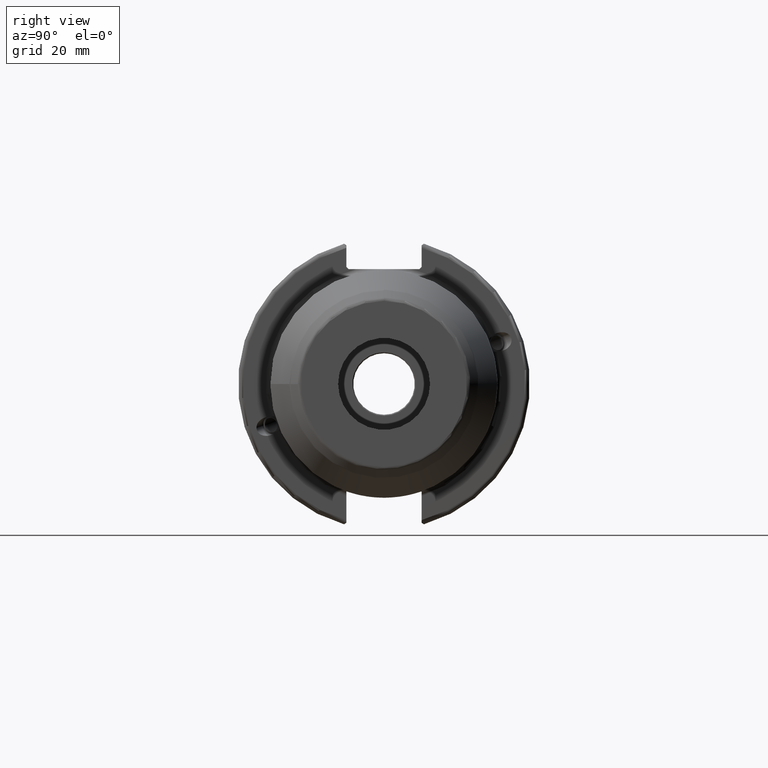
[diagram: clean part render]
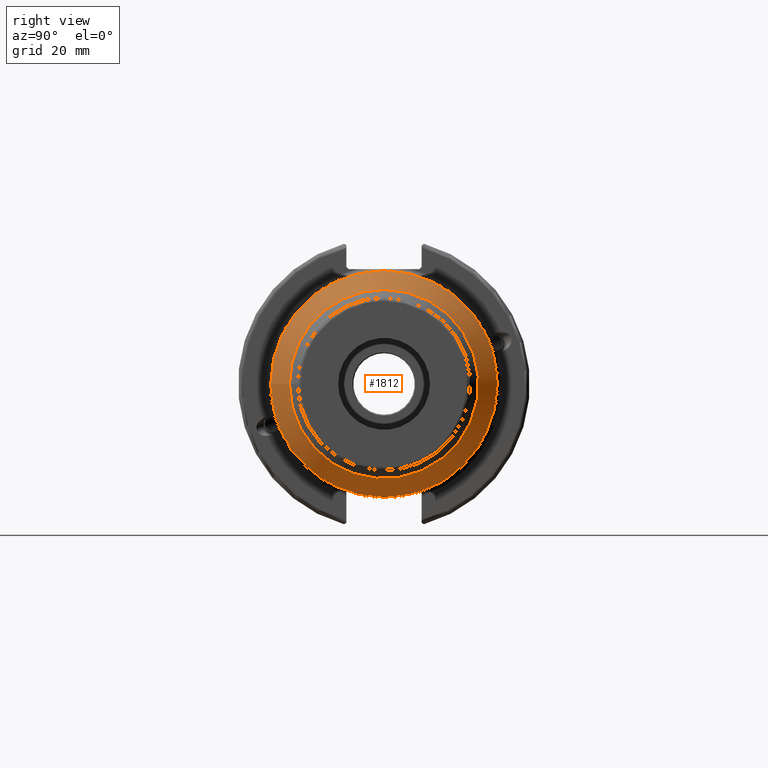
[diagram: same view with one face highlighted and labeled with its STEP entity id]
A machine part, right view. The second image highlights one B-rep face of the part: STEP entity #1812.
In plain terms, the highlighted conical surface has half-angle 25 deg.
Its self-contained STEP definition (entity closure, byte-faithful):
#149=CONICAL_SURFACE('',#1996,22.625,0.436332312998581);
#171=LINE('',#2970,#260);
#260=VECTOR('',#2337,22.625);
#389=FACE_OUTER_BOUND('',#495,.T.);
#495=EDGE_LOOP('',(#1320,#1321,#1322,#1323,#1324,#1325));
#648=CIRCLE('',#1991,20.574519002085);
#649=CIRCLE('',#1992,20.574519002085);
#652=CIRCLE('',#1997,24.6563077870367);
#653=CIRCLE('',#1998,24.6563077870367);
#767=VERTEX_POINT('',#2957);
#768=VERTEX_POINT('',#2959);
#771=VERTEX_POINT('',#2969);
#772=VERTEX_POINT('',#2971);
#974=EDGE_CURVE('',#767,#768,#648,.T.);
#975=EDGE_CURVE('',#768,#767,#649,.T.);
#979=EDGE_CURVE('',#768,#771,#171,.T.);
#980=EDGE_CURVE('',#772,#771,#652,.T.);
#981=EDGE_CURVE('',#771,#772,#653,.T.);
#1320=ORIENTED_EDGE('',*,*,#975,.F.);
#1321=ORIENTED_EDGE('',*,*,#979,.T.);
#1322=ORIENTED_EDGE('',*,*,#980,.F.);
#1323=ORIENTED_EDGE('',*,*,#981,.F.);
#1324=ORIENTED_EDGE('',*,*,#979,.F.);
#1325=ORIENTED_EDGE('',*,*,#974,.F.);
#1812=ADVANCED_FACE('',(#389),#149,.T.);
#1991=AXIS2_PLACEMENT_3D('',#2960,#2324,#2325);
#1992=AXIS2_PLACEMENT_3D('',#2961,#2326,#2327);
#1996=AXIS2_PLACEMENT_3D('',#2968,#2335,#2336);
#1997=AXIS2_PLACEMENT_3D('',#2972,#2338,#2339);
#1998=AXIS2_PLACEMENT_3D('',#2973,#2340,#2341);
#2324=DIRECTION('center_axis',(1.,0.,0.));
#2325=DIRECTION('ref_axis',(0.,-1.,3.06161699786838E-17));
#2326=DIRECTION('center_axis',(1.,0.,0.));
#2327=DIRECTION('ref_axis',(0.,-1.,3.06161699786838E-17));
#2335=DIRECTION('center_axis',(-1.,0.,0.));
#2336=DIRECTION('ref_axis',(0.,1.,0.));
#2337=DIRECTION('',(-0.906307787036651,-0.422618261740698,-5.17558101501964E-17));
#2338=DIRECTION('center_axis',(-1.,0.,0.));
#2339=DIRECTION('ref_axis',(0.,-1.,3.06161699786838E-17));
#2340=DIRECTION('center_axis',(-1.,0.,0.));
#2341=DIRECTION('ref_axis',(0.,-1.,3.06161699786838E-17));
#2957=CARTESIAN_POINT('',(62.3401934843192,-2.51965188398998E-15,20.574519002085));
#2959=CARTESIAN_POINT('',(62.3401934843192,-20.574519002085,-2.51965188398998E-15));
#2960=CARTESIAN_POINT('Origin',(62.3401934843192,0.,-3.14956485498747E-15));
#2961=CARTESIAN_POINT('Origin',(62.3401934843192,0.,-3.14956485498747E-15));
#2968=CARTESIAN_POINT('Origin',(57.9429227939172,0.,0.));
#2969=CARTESIAN_POINT('',(53.5867691869321,-24.6563077870367,-3.01952684101864E-15));
#2970=CARTESIAN_POINT('',(57.9429227939172,-22.625,-2.77076338307089E-15));
#2971=CARTESIAN_POINT('',(53.5867691869321,-3.01952684101864E-15,24.6563077870366));
#2972=CARTESIAN_POINT('Origin',(53.5867691869321,0.,-3.7744085512733E-15));
#2973=CARTESIAN_POINT('Origin',(53.5867691869321,0.,-3.7744085512733E-15));